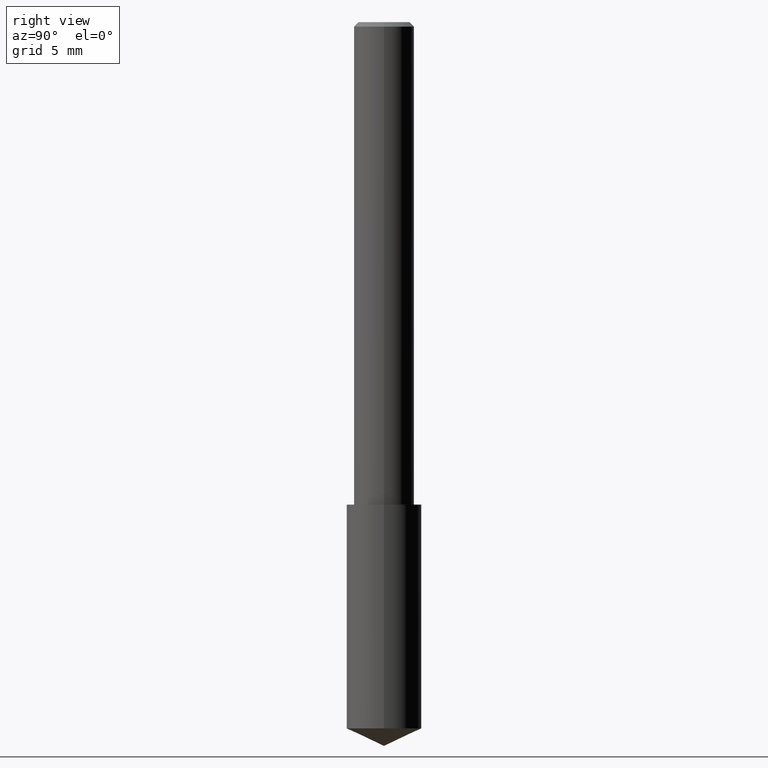
[diagram: clean part render]
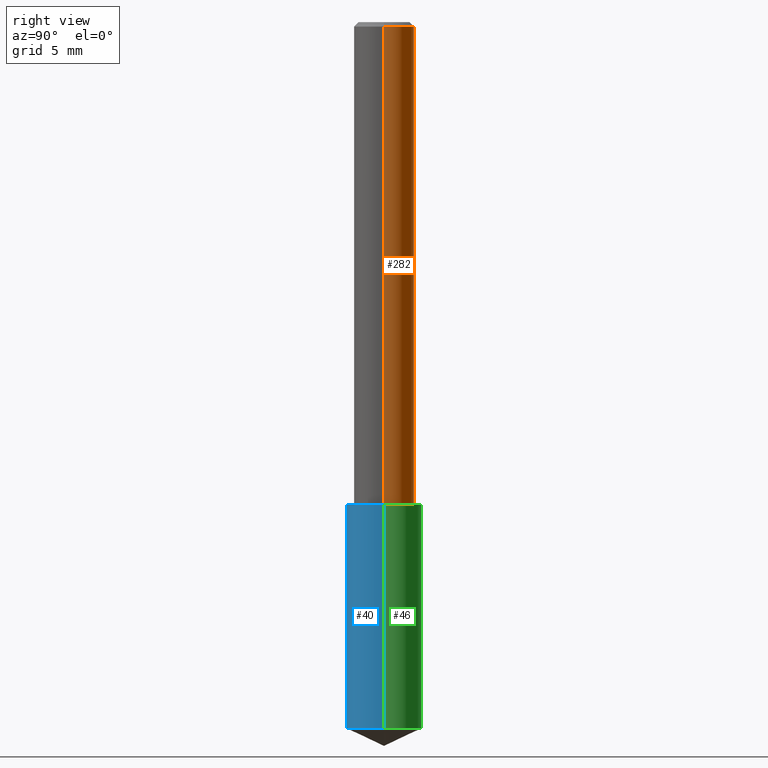
[diagram: same view with three faces highlighted in distinct colors, each labeled with its STEP entity id]
A machine part, right view with three faces highlighted in distinct colors.
Their STEP definitions:

[orange] entity #282 — the highlighted cylindrical surface (edge-blend (fillet) strip) has radius 1.5875 mm, axis along (-0, 0, 1).
#3 = DIRECTION ( 'NONE',  ( -2.445468806185136597E-29, 3.491481338843145583E-15, 1.000000000000000000 ) ) ;
#7 = CARTESIAN_POINT ( 'NONE',  ( 0.000000000000000000, 0.000000000000000000, 0.000000000000000000 ) ) ;
#29 = ORIENTED_EDGE ( 'NONE', *, *, #204, .T. ) ;
#36 = ORIENTED_EDGE ( 'NONE', *, *, #244, .F. ) ;
#50 = EDGE_CURVE ( 'NONE', #299, #197, #232, .T. ) ;
#51 = CARTESIAN_POINT ( 'NONE',  ( -0.06250000000000012490, -1.318017778347335489E-15, -1.000000000000000222 ) ) ;
#55 = DIRECTION ( 'NONE',  ( -2.445468806185136877E-29, 3.491481338843145188E-15, 1.000000000000000000 ) ) ;
#83 = DIRECTION ( 'NONE',  ( 1.000000000000000000, -6.982962677686266711E-15, 0.000000000000000000 ) ) ;
#99 = AXIS2_PLACEMENT_3D ( 'NONE', #117, #323, #195 ) ;
#108 = CARTESIAN_POINT ( 'NONE',  ( 0.06250000000000000000, -4.691678049070463404E-16, -0.009375000000000063838 ) ) ;
#117 = CARTESIAN_POINT ( 'NONE',  ( 2.445468806185137438E-29, -3.491481338843146371E-15, -1.000000000000000222 ) ) ;
#122 = ORIENTED_EDGE ( 'NONE', *, *, #50, .T. ) ;
#125 = CARTESIAN_POINT ( 'NONE',  ( -0.06250000000000000000, -1.318017778347336672E-15, -0.009375000000000063838 ) ) ;
#134 = CARTESIAN_POINT ( 'NONE',  ( 0.06250000000000006939, -4.364351673553921624E-16, 3.047610484872463374E-30 ) ) ;
#137 = VERTEX_POINT ( 'NONE', #125 ) ;
#138 = CYLINDRICAL_SURFACE ( 'NONE', #254, 0.06250000000000006939 ) ;
#144 = AXIS2_PLACEMENT_3D ( 'NONE', #214, #293, #83 ) ;
#163 = LINE ( 'NONE', #134, #335 ) ;
#171 = CIRCLE ( 'NONE', #144, 0.06250000000000000000 ) ;
#191 = LINE ( 'NONE', #317, #260 ) ;
#193 = ORIENTED_EDGE ( 'NONE', *, *, #246, .F. ) ;
#195 = DIRECTION ( 'NONE',  ( 1.000000000000000000, -6.982962677686264344E-15, 0.000000000000000000 ) ) ;
#197 = VERTEX_POINT ( 'NONE', #51 ) ;
#204 = EDGE_CURVE ( 'NONE', #197, #137, #191, .T. ) ;
#214 = CARTESIAN_POINT ( 'NONE',  ( 2.292627005798581061E-31, -3.273263755165471417E-17, -0.009375000000000063838 ) ) ;
#232 = CIRCLE ( 'NONE', #99, 0.06250000000000012490 ) ;
#239 = EDGE_LOOP ( 'NONE', ( #122, #29, #36, #193 ) ) ;
#244 = EDGE_CURVE ( 'NONE', #265, #137, #171, .T. ) ;
#246 = EDGE_CURVE ( 'NONE', #299, #265, #163, .T. ) ;
#254 = AXIS2_PLACEMENT_3D ( 'NONE', #7, #3, #256 ) ;
#256 = DIRECTION ( 'NONE',  ( 1.000000000000000000, -6.982962677686266711E-15, 4.876176775795935793E-29 ) ) ;
#260 = VECTOR ( 'NONE', #318, 39.37007874015748143 ) ;
#264 = FACE_OUTER_BOUND ( 'NONE', #239, .T. ) ;
#265 = VERTEX_POINT ( 'NONE', #108 ) ;
#282 = ADVANCED_FACE ( 'NONE', ( #264 ), #138, .T. ) ;
#293 = DIRECTION ( 'NONE',  ( -2.445468806185136597E-29, 3.491481338843145583E-15, 1.000000000000000000 ) ) ;
#299 = VERTEX_POINT ( 'NONE', #319 ) ;
#317 = CARTESIAN_POINT ( 'NONE',  ( -0.06250000000000006939, 4.440892098500631092E-16, -3.074334431409319267E-30 ) ) ;
#318 = DIRECTION ( 'NONE',  ( -2.445468806185136877E-29, 3.491481338843145188E-15, 1.000000000000000000 ) ) ;
#319 = CARTESIAN_POINT ( 'NONE',  ( 0.06250000000000012490, -3.927916506198539224E-15, -1.000000000000000222 ) ) ;
#323 = DIRECTION ( 'NONE',  ( -2.445468806185136597E-29, 3.491481338843145583E-15, 1.000000000000000000 ) ) ;
#335 = VECTOR ( 'NONE', #55, 39.37007874015748143 ) ;

[blue] entity #40 — the highlighted cylindrical surface (partial cylindrical patch) has radius 1.9748 mm, axis along (-0, 0, 1).
#2 = VERTEX_POINT ( 'NONE', #320 ) ;
#5 = VECTOR ( 'NONE', #53, 39.37007874015748143 ) ;
#22 = DIRECTION ( 'NONE',  ( -2.445468806185136877E-29, 3.491481338843145188E-15, 1.000000000000000000 ) ) ;
#31 = EDGE_CURVE ( 'NONE', #222, #270, #79, .T. ) ;
#33 = CARTESIAN_POINT ( 'NONE',  ( 0.07774999999999999967, -4.034406687033253308E-15, -1.000000000000000222 ) ) ;
#37 = EDGE_LOOP ( 'NONE', ( #103, #150, #316, #289 ) ) ;
#40 = ADVANCED_FACE ( 'NONE', ( #82 ), #170, .T. ) ;
#53 = DIRECTION ( 'NONE',  ( -2.445468806185136877E-29, 3.491481338843145188E-15, 1.000000000000000000 ) ) ;
#61 = AXIS2_PLACEMENT_3D ( 'NONE', #67, #331, #64 ) ;
#64 = DIRECTION ( 'NONE',  ( 1.000000000000000000, -6.982962677686261977E-15, 0.000000000000000000 ) ) ;
#67 = CARTESIAN_POINT ( 'NONE',  ( 3.579541709581674461E-29, -5.110636884430960237E-15, -1.463744579578448946 ) ) ;
#79 = CIRCLE ( 'NONE', #61, 0.07774999999999999967 ) ;
#81 = CARTESIAN_POINT ( 'NONE',  ( 2.445468806185136877E-29, -3.491481338843145977E-15, -1.000000000000000222 ) ) ;
#82 = FACE_OUTER_BOUND ( 'NONE', #37, .T. ) ;
#93 = EDGE_CURVE ( 'NONE', #222, #2, #175, .T. ) ;
#94 = DIRECTION ( 'NONE',  ( -2.445468806185136597E-29, 3.491481338843145583E-15, 1.000000000000000000 ) ) ;
#103 = ORIENTED_EDGE ( 'NONE', *, *, #93, .F. ) ;
#104 = LINE ( 'NONE', #290, #5 ) ;
#112 = CARTESIAN_POINT ( 'NONE',  ( -0.07775000000000001354, -4.558189907377482443E-15, -1.463744579578448946 ) ) ;
#113 = AXIS2_PLACEMENT_3D ( 'NONE', #81, #339, #114 ) ;
#114 = DIRECTION ( 'NONE',  ( 1.000000000000000000, -6.982962677686266711E-15, 0.000000000000000000 ) ) ;
#145 = CARTESIAN_POINT ( 'NONE',  ( 2.445468806185137438E-29, -3.491481338843146371E-15, -1.000000000000000222 ) ) ;
#150 = ORIENTED_EDGE ( 'NONE', *, *, #31, .T. ) ;
#170 = CYLINDRICAL_SURFACE ( 'NONE', #194, 0.07774999999999999967 ) ;
#175 = LINE ( 'NONE', #334, #221 ) ;
#194 = AXIS2_PLACEMENT_3D ( 'NONE', #145, #94, #243 ) ;
#221 = VECTOR ( 'NONE', #22, 39.37007874015748143 ) ;
#222 = VERTEX_POINT ( 'NONE', #112 ) ;
#241 = VERTEX_POINT ( 'NONE', #33 ) ;
#243 = DIRECTION ( 'NONE',  ( 1.000000000000000000, -6.982962677686266711E-15, 0.000000000000000000 ) ) ;
#270 = VERTEX_POINT ( 'NONE', #294 ) ;
#289 = ORIENTED_EDGE ( 'NONE', *, *, #301, .F. ) ;
#290 = CARTESIAN_POINT ( 'NONE',  ( 0.07774999999999999967, -4.034406687033254097E-15, -1.000000000000000222 ) ) ;
#294 = CARTESIAN_POINT ( 'NONE',  ( 0.07775000000000001354, -5.653562232621068357E-15, -1.463744579578448946 ) ) ;
#300 = CIRCLE ( 'NONE', #113, 0.07774999999999999967 ) ;
#301 = EDGE_CURVE ( 'NONE', #2, #241, #300, .T. ) ;
#312 = EDGE_CURVE ( 'NONE', #270, #241, #104, .T. ) ;
#316 = ORIENTED_EDGE ( 'NONE', *, *, #312, .T. ) ;
#320 = CARTESIAN_POINT ( 'NONE',  ( -0.07774999999999999967, -3.748612134583574919E-15, -1.000000000000000222 ) ) ;
#331 = DIRECTION ( 'NONE',  ( -2.445468806185136597E-29, 3.491481338843145583E-15, 1.000000000000000000 ) ) ;
#334 = CARTESIAN_POINT ( 'NONE',  ( -0.07774999999999999967, -2.939034361789668578E-15, -1.000000000000000222 ) ) ;
#339 = DIRECTION ( 'NONE',  ( -2.445468806185136597E-29, 3.491481338843145583E-15, 1.000000000000000000 ) ) ;

[green] entity #46 — the highlighted cylindrical surface (partial cylindrical patch) has radius 1.9748 mm, axis along (-0, 0, 1).
#2 = VERTEX_POINT ( 'NONE', #320 ) ;
#5 = VECTOR ( 'NONE', #53, 39.37007874015748143 ) ;
#18 = DIRECTION ( 'NONE',  ( 1.000000000000000000, -6.982962677686261977E-15, 0.000000000000000000 ) ) ;
#22 = DIRECTION ( 'NONE',  ( -2.445468806185136877E-29, 3.491481338843145188E-15, 1.000000000000000000 ) ) ;
#23 = ORIENTED_EDGE ( 'NONE', *, *, #196, .T. ) ;
#32 = ORIENTED_EDGE ( 'NONE', *, *, #93, .T. ) ;
#33 = CARTESIAN_POINT ( 'NONE',  ( 0.07774999999999999967, -4.034406687033253308E-15, -1.000000000000000222 ) ) ;
#35 = CARTESIAN_POINT ( 'NONE',  ( 2.445468806185137438E-29, -3.491481338843146371E-15, -1.000000000000000222 ) ) ;
#46 = ADVANCED_FACE ( 'NONE', ( #62 ), #267, .T. ) ;
#53 = DIRECTION ( 'NONE',  ( -2.445468806185136877E-29, 3.491481338843145188E-15, 1.000000000000000000 ) ) ;
#62 = FACE_OUTER_BOUND ( 'NONE', #315, .T. ) ;
#93 = EDGE_CURVE ( 'NONE', #222, #2, #175, .T. ) ;
#104 = LINE ( 'NONE', #290, #5 ) ;
#112 = CARTESIAN_POINT ( 'NONE',  ( -0.07775000000000001354, -4.558189907377482443E-15, -1.463744579578448946 ) ) ;
#133 = DIRECTION ( 'NONE',  ( -2.445468806185136597E-29, 3.491481338843145583E-15, 1.000000000000000000 ) ) ;
#140 = DIRECTION ( 'NONE',  ( -2.445468806185136597E-29, 3.491481338843145583E-15, 1.000000000000000000 ) ) ;
#157 = CARTESIAN_POINT ( 'NONE',  ( 3.579541709581674461E-29, -5.110636884430960237E-15, -1.463744579578448946 ) ) ;
#167 = DIRECTION ( 'NONE',  ( 1.000000000000000000, -6.982962677686266711E-15, 0.000000000000000000 ) ) ;
#173 = ORIENTED_EDGE ( 'NONE', *, *, #242, .F. ) ;
#174 = AXIS2_PLACEMENT_3D ( 'NONE', #157, #133, #18 ) ;
#175 = LINE ( 'NONE', #334, #221 ) ;
#186 = DIRECTION ( 'NONE',  ( 1.000000000000000000, -6.982962677686266711E-15, 0.000000000000000000 ) ) ;
#196 = EDGE_CURVE ( 'NONE', #270, #222, #247, .T. ) ;
#203 = AXIS2_PLACEMENT_3D ( 'NONE', #298, #230, #186 ) ;
#221 = VECTOR ( 'NONE', #22, 39.37007874015748143 ) ;
#222 = VERTEX_POINT ( 'NONE', #112 ) ;
#226 = CIRCLE ( 'NONE', #203, 0.07774999999999999967 ) ;
#230 = DIRECTION ( 'NONE',  ( -2.445468806185136597E-29, 3.491481338843145583E-15, 1.000000000000000000 ) ) ;
#238 = AXIS2_PLACEMENT_3D ( 'NONE', #35, #140, #167 ) ;
#241 = VERTEX_POINT ( 'NONE', #33 ) ;
#242 = EDGE_CURVE ( 'NONE', #241, #2, #226, .T. ) ;
#247 = CIRCLE ( 'NONE', #174, 0.07774999999999999967 ) ;
#267 = CYLINDRICAL_SURFACE ( 'NONE', #238, 0.07774999999999999967 ) ;
#270 = VERTEX_POINT ( 'NONE', #294 ) ;
#271 = ORIENTED_EDGE ( 'NONE', *, *, #312, .F. ) ;
#290 = CARTESIAN_POINT ( 'NONE',  ( 0.07774999999999999967, -4.034406687033254097E-15, -1.000000000000000222 ) ) ;
#294 = CARTESIAN_POINT ( 'NONE',  ( 0.07775000000000001354, -5.653562232621068357E-15, -1.463744579578448946 ) ) ;
#298 = CARTESIAN_POINT ( 'NONE',  ( 2.445468806185136877E-29, -3.491481338843145977E-15, -1.000000000000000222 ) ) ;
#312 = EDGE_CURVE ( 'NONE', #270, #241, #104, .T. ) ;
#315 = EDGE_LOOP ( 'NONE', ( #23, #32, #173, #271 ) ) ;
#320 = CARTESIAN_POINT ( 'NONE',  ( -0.07774999999999999967, -3.748612134583574919E-15, -1.000000000000000222 ) ) ;
#334 = CARTESIAN_POINT ( 'NONE',  ( -0.07774999999999999967, -2.939034361789668578E-15, -1.000000000000000222 ) ) ;